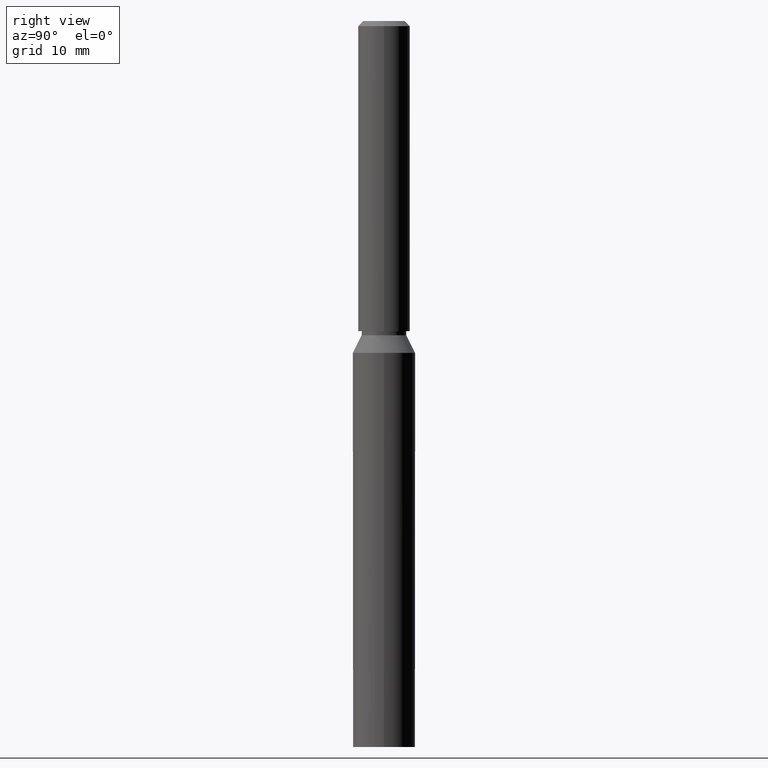
[diagram: clean part render]
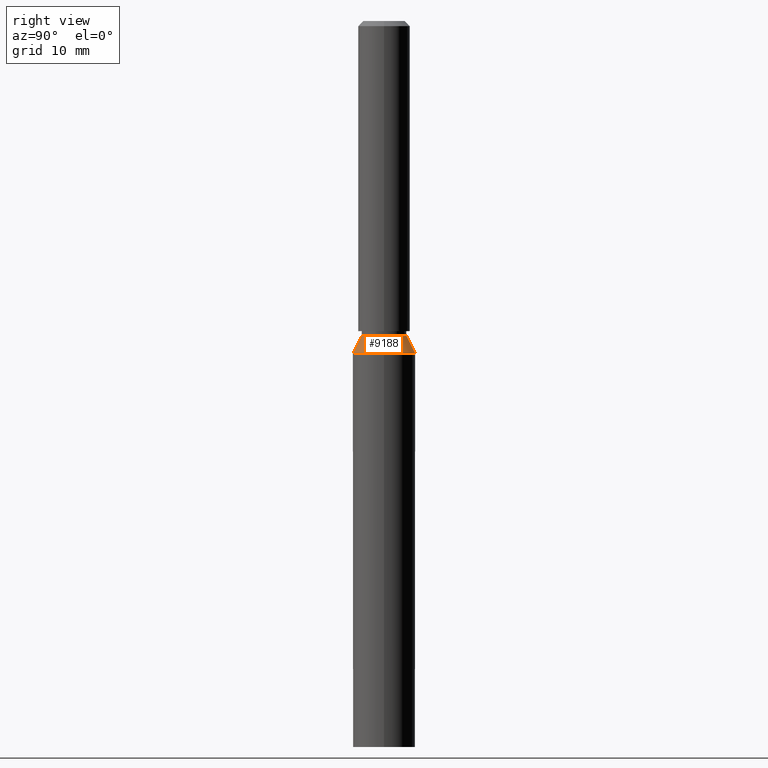
[diagram: same view with one face highlighted and labeled with its STEP entity id]
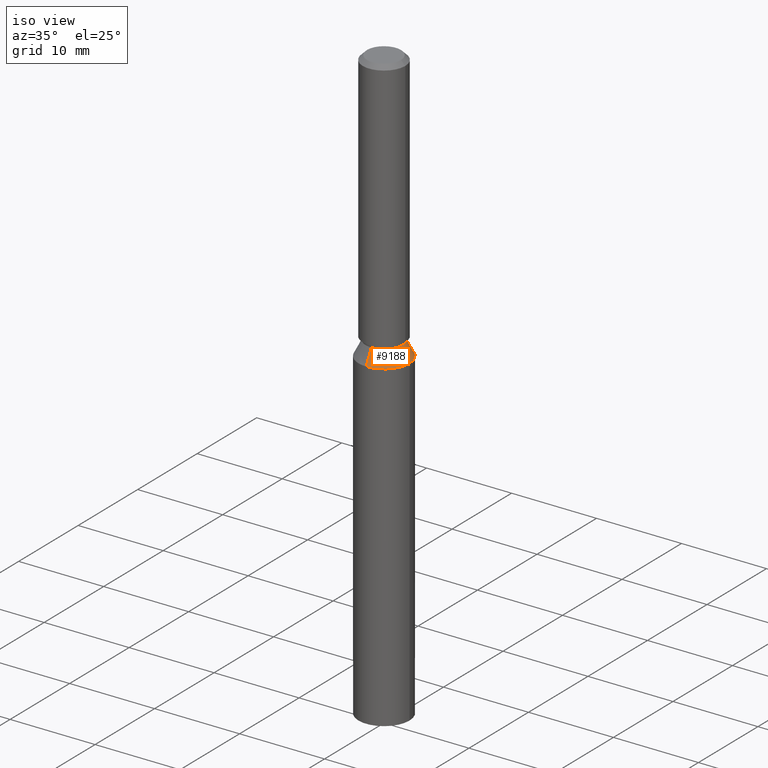
[diagram: same view with one face highlighted and labeled with its STEP entity id]
A machine part, right view. The second image highlights one B-rep face of the part: STEP entity #9188.
A second angle (iso view) of the same face is appended — the face is thin or edge-on in the first view.
In plain terms, the highlighted conical surface has half-angle 26.565 deg.
Its self-contained STEP definition (entity closure, byte-faithful):
#445 = FACE_OUTER_BOUND ( 'NONE', #12459, .T. ) ;
#1001 = CARTESIAN_POINT ( 'NONE',  ( 3.673940397442066300E-016, -3.000000000000005800, 38.00000000000000000 ) ) ;
#1644 = VERTEX_POINT ( 'NONE', #2611 ) ;
#2008 = CARTESIAN_POINT ( 'NONE',  ( 0.0000000000000000000, -7.811935900642894300E-017, 39.70000000000001000 ) ) ;
#2038 = DIRECTION ( 'NONE',  ( -0.0000000000000000000, 1.967742040464204400E-018, -1.000000000000000000 ) ) ;
#2349 = EDGE_CURVE ( 'NONE', #1644, #11018, #3401, .T. ) ;
#2394 = CARTESIAN_POINT ( 'NONE',  ( 0.0000000000000000000, 3.000000000000005800, 38.00000000000000000 ) ) ;
#2505 = DIRECTION ( 'NONE',  ( -0.0000000000000000000, 1.967742040464204400E-018, -1.000000000000000000 ) ) ;
#2611 = CARTESIAN_POINT ( 'NONE',  ( 0.0000000000000000000, 2.150000000000007500, 39.70000000000001000 ) ) ;
#2989 = AXIS2_PLACEMENT_3D ( 'NONE', #8525, #2038, #11780 ) ;
#3187 = DIRECTION ( 'NONE',  ( 5.476786982641981900E-017, -0.4472135954999542600, -0.8944271909999177400 ) ) ;
#3284 = CARTESIAN_POINT ( 'NONE',  ( 0.0000000000000000000, 3.000000000000005800, 38.00000000000000000 ) ) ;
#3401 = CIRCLE ( 'NONE', #6201, 2.150000000000007500 ) ;
#3409 = EDGE_CURVE ( 'NONE', #8399, #10972, #4418, .T. ) ;
#3513 = CIRCLE ( 'NONE', #7159, 3.000000000000005800 ) ;
#3689 = VECTOR ( 'NONE', #11032, 1000.000000000000100 ) ;
#4059 = DIRECTION ( 'NONE',  ( -0.0000000000000000000, 1.967742040464204400E-018, -1.000000000000000000 ) ) ;
#4109 = CARTESIAN_POINT ( 'NONE',  ( 3.673940397442066300E-016, -3.000000000000005800, 38.00000000000000000 ) ) ;
#4418 = CIRCLE ( 'NONE', #10297, 3.000000000000005800 ) ;
#4745 = ORIENTED_EDGE ( 'NONE', *, *, #7901, .F. ) ;
#5317 = DIRECTION ( 'NONE',  ( -0.0000000000000000000, 1.967742040464204400E-018, -1.000000000000000000 ) ) ;
#5654 = LINE ( 'NONE', #1001, #9717 ) ;
#5774 = VERTEX_POINT ( 'NONE', #4109 ) ;
#6201 = AXIS2_PLACEMENT_3D ( 'NONE', #2008, #5317, #12927 ) ;
#6265 = CARTESIAN_POINT ( 'NONE',  ( 3.000000000000005800, 3.673940397442067800E-016, 38.00000000000000000 ) ) ;
#6622 = ORIENTED_EDGE ( 'NONE', *, *, #3409, .F. ) ;
#7159 = AXIS2_PLACEMENT_3D ( 'NONE', #7943, #2505, #8942 ) ;
#7901 = EDGE_CURVE ( 'NONE', #1644, #8399, #12182, .T. ) ;
#7943 = CARTESIAN_POINT ( 'NONE',  ( 0.0000000000000000000, -7.477419753763976000E-017, 38.00000000000000000 ) ) ;
#8309 = ORIENTED_EDGE ( 'NONE', *, *, #11917, .T. ) ;
#8399 = VERTEX_POINT ( 'NONE', #3284 ) ;
#8525 = CARTESIAN_POINT ( 'NONE',  ( 0.0000000000000000000, -7.477419753763976000E-017, 38.00000000000000000 ) ) ;
#8704 = EDGE_CURVE ( 'NONE', #10972, #5774, #3513, .T. ) ;
#8942 = DIRECTION ( 'NONE',  ( 0.0000000000000000000, 1.000000000000000000, 0.0000000000000000000 ) ) ;
#9188 = ADVANCED_FACE ( 'NONE', ( #445 ), #12667, .T. ) ;
#9717 = VECTOR ( 'NONE', #3187, 1000.000000000000100 ) ;
#10297 = AXIS2_PLACEMENT_3D ( 'NONE', #10537, #4059, #11650 ) ;
#10537 = CARTESIAN_POINT ( 'NONE',  ( 0.0000000000000000000, -7.477419753763976000E-017, 38.00000000000000000 ) ) ;
#10891 = ORIENTED_EDGE ( 'NONE', *, *, #8704, .F. ) ;
#10972 = VERTEX_POINT ( 'NONE', #6265 ) ;
#11018 = VERTEX_POINT ( 'NONE', #12749 ) ;
#11032 = DIRECTION ( 'NONE',  ( 0.0000000000000000000, 0.4472135954999542600, -0.8944271909999177400 ) ) ;
#11650 = DIRECTION ( 'NONE',  ( 0.0000000000000000000, 1.000000000000000000, 0.0000000000000000000 ) ) ;
#11780 = DIRECTION ( 'NONE',  ( 0.0000000000000000000, 1.000000000000000000, 0.0000000000000000000 ) ) ;
#11917 = EDGE_CURVE ( 'NONE', #11018, #5774, #5654, .T. ) ;
#12182 = LINE ( 'NONE', #2394, #3689 ) ;
#12220 = ORIENTED_EDGE ( 'NONE', *, *, #2349, .T. ) ;
#12459 = EDGE_LOOP ( 'NONE', ( #12220, #8309, #10891, #6622, #4745 ) ) ;
#12667 = CONICAL_SURFACE ( 'NONE', #2989, 3.000000000000005800, 0.4636476090008020400 ) ;
#12749 = CARTESIAN_POINT ( 'NONE',  ( 2.632990618166818600E-016, -2.150000000000007500, 39.70000000000001000 ) ) ;
#12927 = DIRECTION ( 'NONE',  ( 0.0000000000000000000, 1.000000000000000000, 0.0000000000000000000 ) ) ;